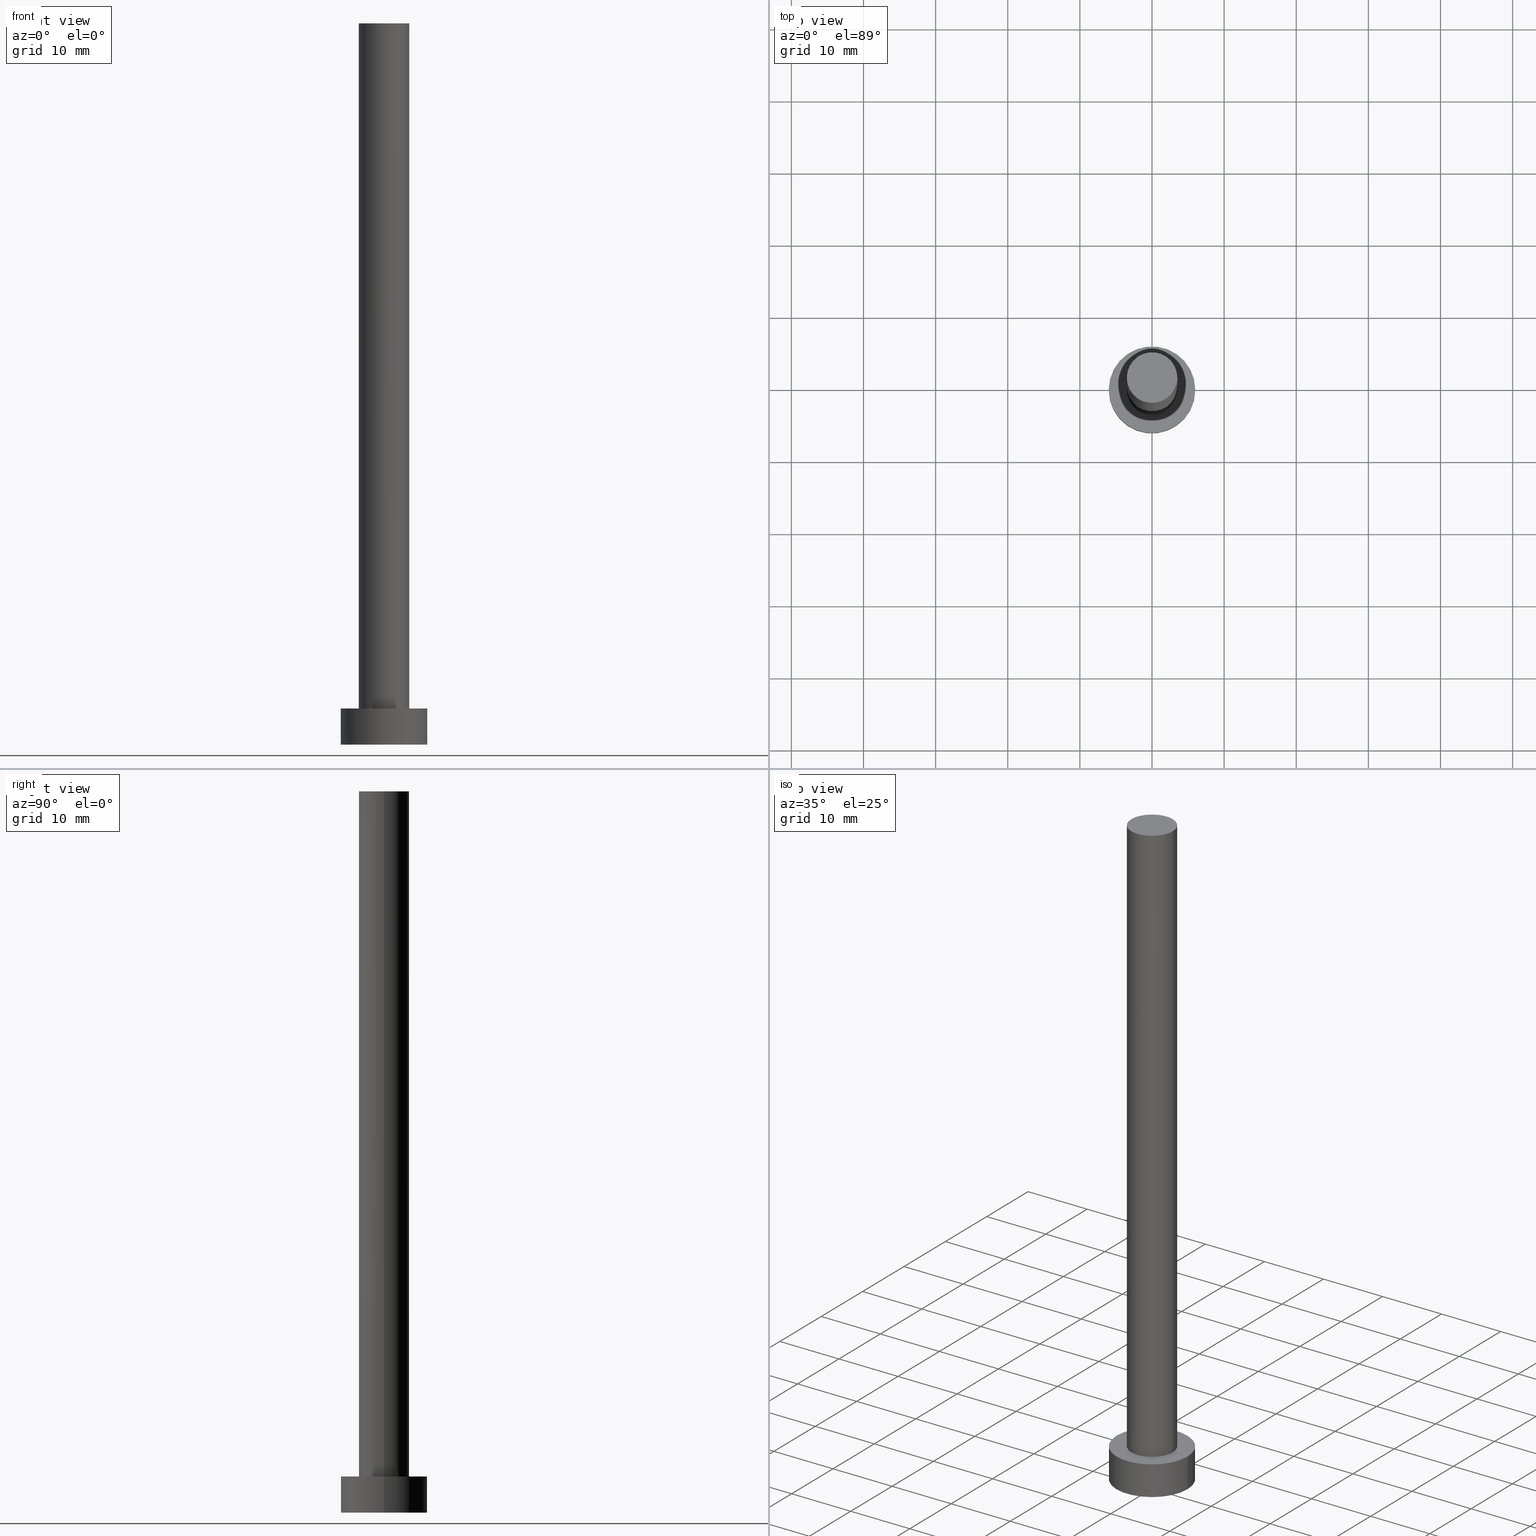
[diagram: canonical four-view strip — front | top / right | iso, engineering-drawing reading convention]
A machine part, canonical four-view strip (front | top / right | iso — engineering-drawing reading convention). The complete STEP part file that produces these views, byte-faithful:
ISO-10303-21;
HEADER;
FILE_DESCRIPTION (( 'STEP AP203' ),
    '1' );
FILE_NAME ('d9af.STEP',
    '2023-02-13T14:52:10',
    ( '' ),
    ( '' ),
    'SwSTEP 2.0',
    'SolidWorks 2019',
    '' );
FILE_SCHEMA (( 'CONFIG_CONTROL_DESIGN' ));
ENDSEC;

DATA;
#1 = LINE ( 'NONE', #19, #107 ) ;
#2 = EDGE_CURVE ( 'NONE', #10, #44, #57, .T. ) ;
#3 = LOCAL_TIME ( 15, 52, 10.00000000000000000, #126 ) ;
#4 = DIRECTION ( 'NONE',  ( -0.000000000000000000, -0.000000000000000000, -1.000000000000000000 ) ) ;
#5 = APPLICATION_PROTOCOL_DEFINITION ( 'international standard', 'config_control_design', 1994, #238 ) ;
#6 = APPROVAL ( #219, 'NEUR�EN�' ) ;
#7 = LINE ( 'NONE', #237, #73 ) ;
#8 = EDGE_LOOP ( 'NONE', ( #18, #71 ) ) ;
#9 = CALENDAR_DATE ( 2023, 13, 2 ) ;
#10 = VERTEX_POINT ( 'NONE', #253 ) ;
#11 = PLANE ( 'NONE',  #137 ) ;
#12 = AXIS2_PLACEMENT_3D ( 'NONE', #114, #94, #251 ) ;
#13 = CALENDAR_DATE ( 2023, 13, 2 ) ;
#14 = PLANE ( 'NONE',  #236 ) ;
#15 = DIRECTION ( 'NONE',  ( 1.000000000000000000, 0.000000000000000000, 0.000000000000000000 ) ) ;
#16 = AXIS2_PLACEMENT_3D ( 'NONE', #103, #141, #213 ) ;
#17 = CARTESIAN_POINT ( 'NONE',  ( 0.000000000000000000, 0.000000000000000000, 0.000000000000000000 ) ) ;
#18 = ORIENTED_EDGE ( 'NONE', *, *, #102, .T. ) ;
#19 = CARTESIAN_POINT ( 'NONE',  ( 3.500000000000000000, 4.286263797015736595E-16, 100.0000000000000000 ) ) ;
#20 = PERSON ( 'NEUR�EN�', 'NEUR�EN�', 'NEUR�EN�', ('NEUR�EN�'), ('NEUR�EN�'), ('NEUR�EN�') ) ;
#21 = EDGE_CURVE ( 'NONE', #28, #70, #115, .T. ) ;
#22 = CARTESIAN_POINT ( 'NONE',  ( 0.000000000000000000, 0.000000000000000000, 100.0000000000000000 ) ) ;
#23 = CC_DESIGN_SECURITY_CLASSIFICATION ( #181, ( #91 ) ) ;
#24 = ORIENTED_EDGE ( 'NONE', *, *, #2, .T. ) ;
#25 = DIRECTION ( 'NONE',  ( -1.000000000000000000, 0.000000000000000000, 0.000000000000000000 ) ) ;
#26 = ADVANCED_FACE ( 'NONE', ( #205 ), #30, .T. ) ;
#27 = ADVANCED_BREP_SHAPE_REPRESENTATION ( 'd9af', ( #159, #254 ), #142 ) ;
#28 = VERTEX_POINT ( 'NONE', #211 ) ;
#29 = APPROVAL_ROLE ( '' ) ;
#30 = CYLINDRICAL_SURFACE ( 'NONE', #204, 6.000000000000000888 ) ;
#31 = COORDINATED_UNIVERSAL_TIME_OFFSET ( 1, 0, .AHEAD. ) ;
#32 = FACE_OUTER_BOUND ( 'NONE', #146, .T. ) ;
#33 = AXIS2_PLACEMENT_3D ( 'NONE', #199, #200, #160 ) ;
#34 = CALENDAR_DATE ( 2023, 13, 2 ) ;
#35 = FACE_BOUND ( 'NONE', #187, .T. ) ;
#36 = ADVANCED_FACE ( 'NONE', ( #35, #39 ), #11, .T. ) ;
#37 = AXIS2_PLACEMENT_3D ( 'NONE', #17, #207, #226 ) ;
#38 = CARTESIAN_POINT ( 'NONE',  ( 0.000000000000000000, 0.000000000000000000, 100.0000000000000000 ) ) ;
#39 = FACE_OUTER_BOUND ( 'NONE', #8, .T. ) ;
#40 = AXIS2_PLACEMENT_3D ( 'NONE', #38, #116, #25 ) ;
#41 = DIRECTION ( 'NONE',  ( -0.000000000000000000, -0.000000000000000000, -1.000000000000000000 ) ) ;
#42 = CARTESIAN_POINT ( 'NONE',  ( -6.000000000000000888, 0.000000000000000000, 5.000000000000000000 ) ) ;
#43 = LINE ( 'NONE', #42, #68 ) ;
#44 = VERTEX_POINT ( 'NONE', #134 ) ;
#45 = APPROVAL_ROLE ( '' ) ;
#46 = DATE_AND_TIME ( #34, #218 ) ;
#47 = ORIENTED_EDGE ( 'NONE', *, *, #186, .T. ) ;
#48 = CIRCLE ( 'NONE', #193, 3.500000000000000000 ) ;
#49 = DATE_AND_TIME ( #13, #79 ) ;
#50 = ORIENTED_EDGE ( 'NONE', *, *, #21, .T. ) ;
#51 = DIRECTION ( 'NONE',  ( 0.000000000000000000, 0.000000000000000000, 1.000000000000000000 ) ) ;
#52 = APPROVAL_STATUS ( 'not_yet_approved' ) ;
#53 = ADVANCED_FACE ( 'NONE', ( #195 ), #111, .F. ) ;
#54 = DIRECTION ( 'NONE',  ( -0.000000000000000000, -0.000000000000000000, -1.000000000000000000 ) ) ;
#55 = APPROVAL_PERSON_ORGANIZATION ( #129, #81, #89 ) ;
#56 = DIRECTION ( 'NONE',  ( 1.000000000000000000, 0.000000000000000000, 0.000000000000000000 ) ) ;
#57 = CIRCLE ( 'NONE', #120, 6.000000000000000888 ) ;
#58 = LOCAL_TIME ( 15, 52, 10.00000000000000000, #31 ) ;
#59 = DIRECTION ( 'NONE',  ( 1.000000000000000000, 0.000000000000000000, -0.000000000000000000 ) ) ;
#60 = DIRECTION ( 'NONE',  ( 1.000000000000000000, 0.000000000000000000, 0.000000000000000000 ) ) ;
#61 = APPROVAL ( #52, 'NEUR�EN�' ) ;
#62 = AXIS2_PLACEMENT_3D ( 'NONE', #90, #72, #59 ) ;
#63 = CARTESIAN_POINT ( 'NONE',  ( 0.000000000000000000, 0.000000000000000000, 0.000000000000000000 ) ) ;
#64 = VECTOR ( 'NONE', #78, 1000.000000000000000 ) ;
#65 = ORIENTED_EDGE ( 'NONE', *, *, #127, .F. ) ;
#66 = PERSON_AND_ORGANIZATION ( #20, #85 ) ;
#67 = CIRCLE ( 'NONE', #75, 3.500000000000000000 ) ;
#68 = VECTOR ( 'NONE', #41, 1000.000000000000000 ) ;
#69 = ORIENTED_EDGE ( 'NONE', *, *, #156, .T. ) ;
#70 = VERTEX_POINT ( 'NONE', #190 ) ;
#71 = ORIENTED_EDGE ( 'NONE', *, *, #202, .T. ) ;
#72 = DIRECTION ( 'NONE',  ( 0.000000000000000000, 0.000000000000000000, 1.000000000000000000 ) ) ;
#73 = VECTOR ( 'NONE', #162, 1000.000000000000000 ) ;
#74 = AXIS2_PLACEMENT_3D ( 'NONE', #194, #228, #176 ) ;
#75 = AXIS2_PLACEMENT_3D ( 'NONE', #22, #123, #60 ) ;
#76 = DIRECTION ( 'NONE',  ( -1.000000000000000000, 0.000000000000000000, 0.000000000000000000 ) ) ;
#77 = CARTESIAN_POINT ( 'NONE',  ( 0.000000000000000000, 0.000000000000000000, 5.000000000000000000 ) ) ;
#78 = DIRECTION ( 'NONE',  ( -0.000000000000000000, -0.000000000000000000, -1.000000000000000000 ) ) ;
#79 = LOCAL_TIME ( 15, 52, 10.00000000000000000, #244 ) ;
#80 = CYLINDRICAL_SURFACE ( 'NONE', #16, 6.000000000000000888 ) ;
#81 = APPROVAL ( #154, 'NEUR�EN�' ) ;
#82 = CARTESIAN_POINT ( 'NONE',  ( -6.000000000000000888, 0.000000000000000000, 5.000000000000000000 ) ) ;
#83 = COORDINATED_UNIVERSAL_TIME_OFFSET ( 1, 0, .AHEAD. ) ;
#84 = CLOSED_SHELL ( 'NONE', ( #242, #231, #26, #36, #53, #152, #110 ) ) ;
#85 = ORGANIZATION ( 'NEUR�EN�', 'NEUR�EN�', '' ) ;
#86 = ORIENTED_EDGE ( 'NONE', *, *, #21, .F. ) ;
#87 = PERSON_AND_ORGANIZATION ( #20, #85 ) ;
#88 = ORIENTED_EDGE ( 'NONE', *, *, #102, .F. ) ;
#89 = APPROVAL_ROLE ( '' ) ;
#90 = CARTESIAN_POINT ( 'NONE',  ( 0.000000000000000000, 0.000000000000000000, 0.000000000000000000 ) ) ;
#91 = PRODUCT_DEFINITION_FORMATION_WITH_SPECIFIED_SOURCE ( 'LIBOVOLN�', '', #118, .NOT_KNOWN. ) ;
#92 = PRODUCT_DEFINITION ( 'NEZN�M�', '', #91, #177 ) ;
#93 = SHAPE_DEFINITION_REPRESENTATION ( #220, #27 ) ;
#94 = DIRECTION ( 'NONE',  ( 0.000000000000000000, 0.000000000000000000, 1.000000000000000000 ) ) ;
#95 = ORIENTED_EDGE ( 'NONE', *, *, #186, .F. ) ;
#96 = CIRCLE ( 'NONE', #12, 6.000000000000000888 ) ;
#97 = ORIENTED_EDGE ( 'NONE', *, *, #139, .F. ) ;
#98 = DIRECTION ( 'NONE',  ( 0.000000000000000000, 0.000000000000000000, 1.000000000000000000 ) ) ;
#99 = CARTESIAN_POINT ( 'NONE',  ( -3.500000000000000000, 0.000000000000000000, 100.0000000000000000 ) ) ;
#100 = CIRCLE ( 'NONE', #192, 3.500000000000000000 ) ;
#101 = LINE ( 'NONE', #99, #64 ) ;
#102 = EDGE_CURVE ( 'NONE', #243, #171, #96, .T. ) ;
#103 = CARTESIAN_POINT ( 'NONE',  ( 0.000000000000000000, 0.000000000000000000, 5.000000000000000000 ) ) ;
#104 = CARTESIAN_POINT ( 'NONE',  ( 0.000000000000000000, 0.000000000000000000, 100.0000000000000000 ) ) ;
#105 = CC_DESIGN_DATE_AND_TIME_ASSIGNMENT ( #225, #108, ( #92 ) ) ;
#106 = COORDINATED_UNIVERSAL_TIME_OFFSET ( 1, 0, .AHEAD. ) ;
#107 = VECTOR ( 'NONE', #201, 1000.000000000000000 ) ;
#108 = DATE_TIME_ROLE ( 'creation_date' ) ;
#109 = ORIENTED_EDGE ( 'NONE', *, *, #127, .T. ) ;
#110 = ADVANCED_FACE ( 'NONE', ( #119 ), #14, .T. ) ;
#111 = PLANE ( 'NONE',  #62 ) ;
#112 = APPROVAL_DATE_TIME ( #247, #6 ) ;
#113 = CYLINDRICAL_SURFACE ( 'NONE', #40, 3.500000000000000000 ) ;
#114 = CARTESIAN_POINT ( 'NONE',  ( 0.000000000000000000, 0.000000000000000000, 5.000000000000000000 ) ) ;
#115 = CIRCLE ( 'NONE', #74, 3.500000000000000000 ) ;
#116 = DIRECTION ( 'NONE',  ( -0.000000000000000000, -0.000000000000000000, -1.000000000000000000 ) ) ;
#117 = EDGE_CURVE ( 'NONE', #240, #158, #100, .T. ) ;
#118 = PRODUCT ( 'd9af', 'd9af', '', ( #143 ) ) ;
#119 = FACE_OUTER_BOUND ( 'NONE', #140, .T. ) ;
#120 = AXIS2_PLACEMENT_3D ( 'NONE', #191, #179, #15 ) ;
#121 = CARTESIAN_POINT ( 'NONE',  ( -3.500000000000000000, 0.000000000000000000, 100.0000000000000000 ) ) ;
#122 = CC_DESIGN_DATE_AND_TIME_ASSIGNMENT ( #49, #224, ( #181 ) ) ;
#123 = DIRECTION ( 'NONE',  ( 0.000000000000000000, 0.000000000000000000, 1.000000000000000000 ) ) ;
#124 = EDGE_LOOP ( 'NONE', ( #149, #88, #69, #24 ) ) ;
#125 = PERSON_AND_ORGANIZATION_ROLE ( 'design_owner' ) ;
#126 = COORDINATED_UNIVERSAL_TIME_OFFSET ( 1, 0, .AHEAD. ) ;
#127 = EDGE_CURVE ( 'NONE', #70, #28, #48, .T. ) ;
#128 = UNCERTAINTY_MEASURE_WITH_UNIT (LENGTH_MEASURE( 1.000000000000000082E-05 ), #163, 'distance_accuracy_value', 'NONE');
#129 = PERSON_AND_ORGANIZATION ( #20, #85 ) ;
#130 = AXIS2_PLACEMENT_3D ( 'NONE', #104, #4, #197 ) ;
#131 = CC_DESIGN_PERSON_AND_ORGANIZATION_ASSIGNMENT ( #221, #169, ( #181 ) ) ;
#132 = APPROVAL_DATE_TIME ( #249, #81 ) ;
#133 = ORIENTED_EDGE ( 'NONE', *, *, #170, .T. ) ;
#134 = CARTESIAN_POINT ( 'NONE',  ( 6.000000000000000888, 7.347880794884120722E-16, 0.000000000000000000 ) ) ;
#135 = ORIENTED_EDGE ( 'NONE', *, *, #252, .T. ) ;
#136 = CARTESIAN_POINT ( 'NONE',  ( 0.000000000000000000, 0.000000000000000000, 100.0000000000000000 ) ) ;
#137 = AXIS2_PLACEMENT_3D ( 'NONE', #174, #233, #248 ) ;
#138 = CC_DESIGN_APPROVAL ( #61, ( #91 ) ) ;
#139 = EDGE_CURVE ( 'NONE', #44, #10, #151, .T. ) ;
#140 = EDGE_LOOP ( 'NONE', ( #47, #157 ) ) ;
#141 = DIRECTION ( 'NONE',  ( -0.000000000000000000, -0.000000000000000000, -1.000000000000000000 ) ) ;
#142 =( GEOMETRIC_REPRESENTATION_CONTEXT ( 3 ) GLOBAL_UNCERTAINTY_ASSIGNED_CONTEXT ( ( #128 ) ) GLOBAL_UNIT_ASSIGNED_CONTEXT ( ( #163, #180, #183 ) ) REPRESENTATION_CONTEXT ( 'NONE', 'WORKASPACE' ) );
#143 = MECHANICAL_CONTEXT ( 'NONE', #238, 'mechanical' ) ;
#144 = CARTESIAN_POINT ( 'NONE',  ( 6.000000000000000888, 7.347880794884120722E-16, 5.000000000000000000 ) ) ;
#145 = DIRECTION ( 'NONE',  ( 1.000000000000000000, 0.000000000000000000, 0.000000000000000000 ) ) ;
#146 = EDGE_LOOP ( 'NONE', ( #245, #95, #227, #109 ) ) ;
#147 = APPROVAL_PERSON_ORGANIZATION ( #148, #6, #45 ) ;
#148 = PERSON_AND_ORGANIZATION ( #20, #85 ) ;
#149 = ORIENTED_EDGE ( 'NONE', *, *, #170, .F. ) ;
#150 = SECURITY_CLASSIFICATION_LEVEL ( 'unclassified' ) ;
#151 = CIRCLE ( 'NONE', #37, 6.000000000000000888 ) ;
#152 = ADVANCED_FACE ( 'NONE', ( #32 ), #113, .T. ) ;
#153 = EDGE_LOOP ( 'NONE', ( #208, #133, #188, #168 ) ) ;
#154 = APPROVAL_STATUS ( 'not_yet_approved' ) ;
#155 = DIRECTION ( 'NONE',  ( 1.000000000000000000, 0.000000000000000000, -0.000000000000000000 ) ) ;
#156 = EDGE_CURVE ( 'NONE', #243, #10, #43, .T. ) ;
#157 = ORIENTED_EDGE ( 'NONE', *, *, #117, .T. ) ;
#158 = VERTEX_POINT ( 'NONE', #121 ) ;
#159 = MANIFOLD_SOLID_BREP ( 'P�idat vysunut�m3', #84 ) ;
#160 = DIRECTION ( 'NONE',  ( 1.000000000000000000, 0.000000000000000000, 0.000000000000000000 ) ) ;
#161 = CC_DESIGN_PERSON_AND_ORGANIZATION_ASSIGNMENT ( #185, #241, ( #92 ) ) ;
#162 = DIRECTION ( 'NONE',  ( -0.000000000000000000, -0.000000000000000000, -1.000000000000000000 ) ) ;
#163 =( LENGTH_UNIT ( ) NAMED_UNIT ( * ) SI_UNIT ( .MILLI., .METRE. ) );
#164 = PERSON_AND_ORGANIZATION ( #20, #85 ) ;
#165 = PERSON_AND_ORGANIZATION ( #20, #85 ) ;
#166 = ORIENTED_EDGE ( 'NONE', *, *, #232, .F. ) ;
#167 = CALENDAR_DATE ( 2023, 13, 2 ) ;
#168 = ORIENTED_EDGE ( 'NONE', *, *, #156, .F. ) ;
#169 = PERSON_AND_ORGANIZATION_ROLE ( 'classification_officer' ) ;
#170 = EDGE_CURVE ( 'NONE', #171, #44, #7, .T. ) ;
#171 = VERTEX_POINT ( 'NONE', #144 ) ;
#172 = PERSON_AND_ORGANIZATION_ROLE ( 'design_supplier' ) ;
#173 = DIRECTION ( 'NONE',  ( 0.000000000000000000, 0.000000000000000000, 1.000000000000000000 ) ) ;
#174 = CARTESIAN_POINT ( 'NONE',  ( 0.000000000000000000, 0.000000000000000000, 5.000000000000000000 ) ) ;
#175 = PRODUCT_RELATED_PRODUCT_CATEGORY ( 'detail', '', ( #118 ) ) ;
#176 = DIRECTION ( 'NONE',  ( 1.000000000000000000, 0.000000000000000000, 0.000000000000000000 ) ) ;
#177 = DESIGN_CONTEXT ( 'detailed design', #216, 'design' ) ;
#178 = EDGE_LOOP ( 'NONE', ( #250, #135, #50, #166 ) ) ;
#179 = DIRECTION ( 'NONE',  ( 0.000000000000000000, 0.000000000000000000, 1.000000000000000000 ) ) ;
#180 =( NAMED_UNIT ( * ) PLANE_ANGLE_UNIT ( ) SI_UNIT ( $, .RADIAN. ) );
#181 = SECURITY_CLASSIFICATION ( '', '', #150 ) ;
#182 = CYLINDRICAL_SURFACE ( 'NONE', #130, 3.500000000000000000 ) ;
#183 =( NAMED_UNIT ( * ) SI_UNIT ( $, .STERADIAN. ) SOLID_ANGLE_UNIT ( ) );
#184 = CALENDAR_DATE ( 2023, 13, 2 ) ;
#185 = PERSON_AND_ORGANIZATION ( #20, #85 ) ;
#186 = EDGE_CURVE ( 'NONE', #158, #240, #67, .T. ) ;
#187 = EDGE_LOOP ( 'NONE', ( #65, #86 ) ) ;
#188 = ORIENTED_EDGE ( 'NONE', *, *, #139, .T. ) ;
#189 = PERSON_AND_ORGANIZATION_ROLE ( 'creator' ) ;
#190 = CARTESIAN_POINT ( 'NONE',  ( -3.500000000000000000, 0.000000000000000000, 5.000000000000000000 ) ) ;
#191 = CARTESIAN_POINT ( 'NONE',  ( 0.000000000000000000, 0.000000000000000000, 0.000000000000000000 ) ) ;
#192 = AXIS2_PLACEMENT_3D ( 'NONE', #210, #173, #230 ) ;
#193 = AXIS2_PLACEMENT_3D ( 'NONE', #77, #51, #56 ) ;
#194 = CARTESIAN_POINT ( 'NONE',  ( 0.000000000000000000, 0.000000000000000000, 5.000000000000000000 ) ) ;
#195 = FACE_OUTER_BOUND ( 'NONE', #223, .T. ) ;
#196 = LOCAL_TIME ( 15, 52, 10.00000000000000000, #106 ) ;
#197 = DIRECTION ( 'NONE',  ( -1.000000000000000000, 0.000000000000000000, 0.000000000000000000 ) ) ;
#198 = CARTESIAN_POINT ( 'NONE',  ( 3.500000000000000000, 4.286263797015736595E-16, 100.0000000000000000 ) ) ;
#199 = CARTESIAN_POINT ( 'NONE',  ( 0.000000000000000000, 0.000000000000000000, 5.000000000000000000 ) ) ;
#200 = DIRECTION ( 'NONE',  ( 0.000000000000000000, 0.000000000000000000, 1.000000000000000000 ) ) ;
#201 = DIRECTION ( 'NONE',  ( -0.000000000000000000, -0.000000000000000000, -1.000000000000000000 ) ) ;
#202 = EDGE_CURVE ( 'NONE', #171, #243, #203, .T. ) ;
#203 = CIRCLE ( 'NONE', #33, 6.000000000000000888 ) ;
#204 = AXIS2_PLACEMENT_3D ( 'NONE', #255, #54, #76 ) ;
#205 = FACE_OUTER_BOUND ( 'NONE', #124, .T. ) ;
#206 = APPROVAL_DATE_TIME ( #46, #61 ) ;
#207 = DIRECTION ( 'NONE',  ( 0.000000000000000000, 0.000000000000000000, 1.000000000000000000 ) ) ;
#208 = ORIENTED_EDGE ( 'NONE', *, *, #202, .F. ) ;
#209 = CC_DESIGN_PERSON_AND_ORGANIZATION_ASSIGNMENT ( #164, #125, ( #118 ) ) ;
#210 = CARTESIAN_POINT ( 'NONE',  ( 0.000000000000000000, 0.000000000000000000, 100.0000000000000000 ) ) ;
#211 = CARTESIAN_POINT ( 'NONE',  ( 3.500000000000000000, 4.286263797015736595E-16, 5.000000000000000000 ) ) ;
#212 = CC_DESIGN_PERSON_AND_ORGANIZATION_ASSIGNMENT ( #87, #189, ( #91 ) ) ;
#213 = DIRECTION ( 'NONE',  ( -1.000000000000000000, 0.000000000000000000, 0.000000000000000000 ) ) ;
#214 = FACE_OUTER_BOUND ( 'NONE', #178, .T. ) ;
#215 = DIRECTION ( 'NONE',  ( 0.000000000000000000, 0.000000000000000000, 1.000000000000000000 ) ) ;
#216 = APPLICATION_CONTEXT ( 'configuration controlled 3d designs of mechanical parts and assemblies' ) ;
#217 = ORIENTED_EDGE ( 'NONE', *, *, #2, .F. ) ;
#218 = LOCAL_TIME ( 15, 52, 10.00000000000000000, #83 ) ;
#219 = APPROVAL_STATUS ( 'not_yet_approved' ) ;
#220 = PRODUCT_DEFINITION_SHAPE ( 'NONE', 'NONE',  #92 ) ;
#221 = PERSON_AND_ORGANIZATION ( #20, #85 ) ;
#222 = CC_DESIGN_PERSON_AND_ORGANIZATION_ASSIGNMENT ( #165, #172, ( #91 ) ) ;
#223 = EDGE_LOOP ( 'NONE', ( #217, #97 ) ) ;
#224 = DATE_TIME_ROLE ( 'classification_date' ) ;
#225 = DATE_AND_TIME ( #9, #58 ) ;
#226 = DIRECTION ( 'NONE',  ( 1.000000000000000000, 0.000000000000000000, 0.000000000000000000 ) ) ;
#227 = ORIENTED_EDGE ( 'NONE', *, *, #232, .T. ) ;
#228 = DIRECTION ( 'NONE',  ( 0.000000000000000000, 0.000000000000000000, 1.000000000000000000 ) ) ;
#229 = CC_DESIGN_APPROVAL ( #6, ( #92 ) ) ;
#230 = DIRECTION ( 'NONE',  ( 1.000000000000000000, 0.000000000000000000, 0.000000000000000000 ) ) ;
#231 = ADVANCED_FACE ( 'NONE', ( #234 ), #80, .T. ) ;
#232 = EDGE_CURVE ( 'NONE', #158, #70, #101, .T. ) ;
#233 = DIRECTION ( 'NONE',  ( 0.000000000000000000, 0.000000000000000000, 1.000000000000000000 ) ) ;
#234 = FACE_OUTER_BOUND ( 'NONE', #153, .T. ) ;
#235 = APPROVAL_PERSON_ORGANIZATION ( #66, #61, #29 ) ;
#236 = AXIS2_PLACEMENT_3D ( 'NONE', #136, #98, #155 ) ;
#237 = CARTESIAN_POINT ( 'NONE',  ( 6.000000000000000888, 7.347880794884120722E-16, 5.000000000000000000 ) ) ;
#238 = APPLICATION_CONTEXT ( 'configuration controlled 3d designs of mechanical parts and assemblies' ) ;
#239 = APPLICATION_PROTOCOL_DEFINITION ( 'international standard', 'config_control_design', 1994, #216 ) ;
#240 = VERTEX_POINT ( 'NONE', #198 ) ;
#241 = PERSON_AND_ORGANIZATION_ROLE ( 'creator' ) ;
#242 = ADVANCED_FACE ( 'NONE', ( #214 ), #182, .T. ) ;
#243 = VERTEX_POINT ( 'NONE', #82 ) ;
#244 = COORDINATED_UNIVERSAL_TIME_OFFSET ( 1, 0, .AHEAD. ) ;
#245 = ORIENTED_EDGE ( 'NONE', *, *, #252, .F. ) ;
#246 = CC_DESIGN_APPROVAL ( #81, ( #181 ) ) ;
#247 = DATE_AND_TIME ( #167, #3 ) ;
#248 = DIRECTION ( 'NONE',  ( 1.000000000000000000, 0.000000000000000000, -0.000000000000000000 ) ) ;
#249 = DATE_AND_TIME ( #184, #196 ) ;
#250 = ORIENTED_EDGE ( 'NONE', *, *, #117, .F. ) ;
#251 = DIRECTION ( 'NONE',  ( 1.000000000000000000, 0.000000000000000000, 0.000000000000000000 ) ) ;
#252 = EDGE_CURVE ( 'NONE', #240, #28, #1, .T. ) ;
#253 = CARTESIAN_POINT ( 'NONE',  ( -6.000000000000000888, 0.000000000000000000, 0.000000000000000000 ) ) ;
#254 = AXIS2_PLACEMENT_3D ( 'NONE', #63, #215, #145 ) ;
#255 = CARTESIAN_POINT ( 'NONE',  ( 0.000000000000000000, 0.000000000000000000, 5.000000000000000000 ) ) ;
ENDSEC;
END-ISO-10303-21;
